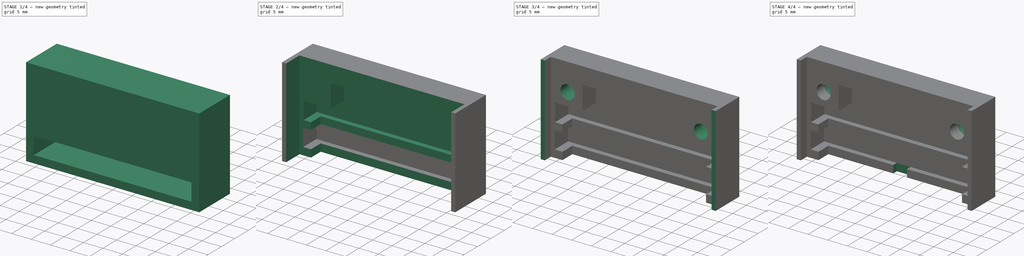
[diagram: build sequence overview — one tinted view per stage of 4, left to right]
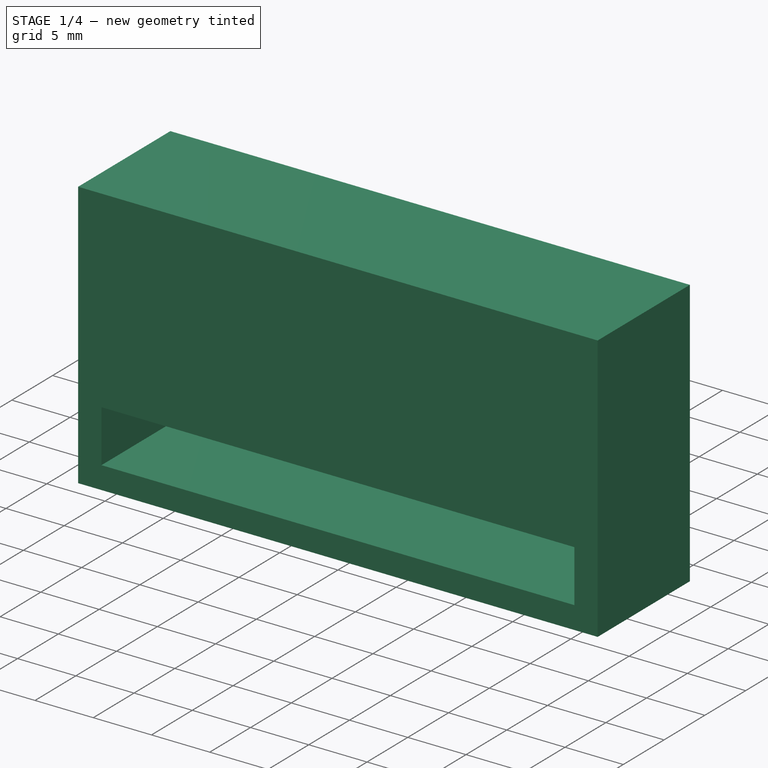
[diagram: stage 1 of 4 — iso view after this stage's code; geometry added in this stage tinted green]
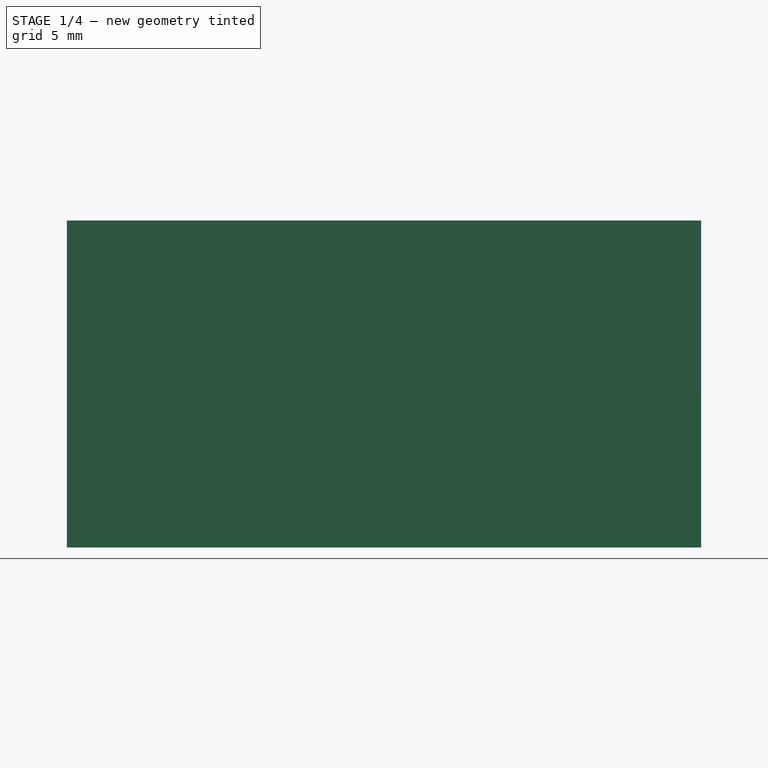
[diagram: stage 1 of 4 — front view after this stage's code; geometry added in this stage tinted green]
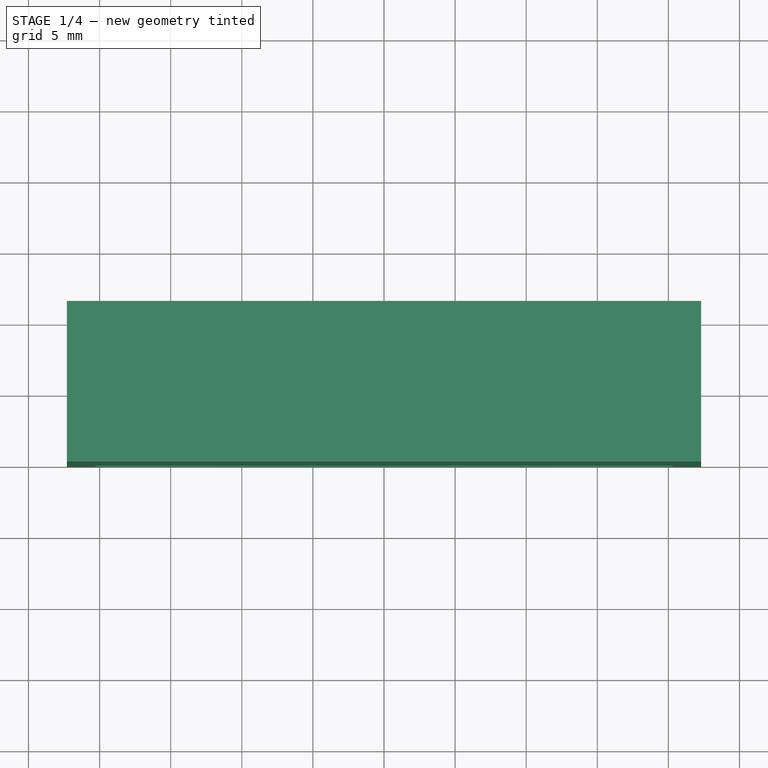
[diagram: stage 1 of 4 — top view after this stage's code; geometry added in this stage tinted green]
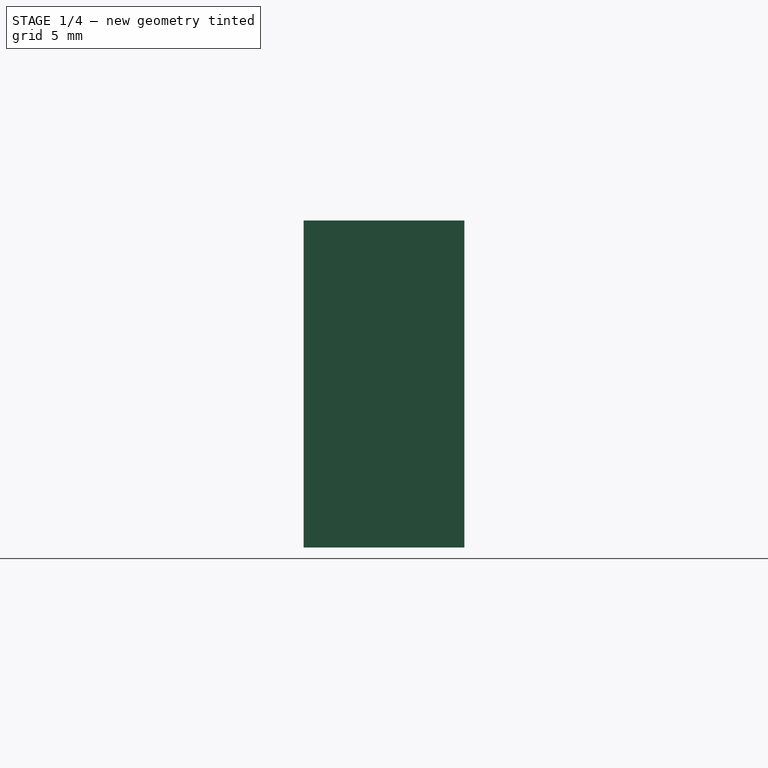
[diagram: stage 1 of 4 — right view after this stage's code; geometry added in this stage tinted green]
FCSTD DOCUMENT  (FreeCAD 0.20R29603 (Git))
Label: dpf_mon_box_gornji_sarka
License: All rights reserved
LicenseURL: http://en.wikipedia.org/wiki/All_rights_reserved
objects: Sketcher::SketchObject×10, PartDesign::Pocket×8, PartDesign::Pad×2, PartDesign::Body×1
note: 31 computed .brp shape members not serialized (recipe doc carries the construction recipe); baked Part::Feature solids carry a one-line shape summary decoded from their .brp

FEATURE [Sketcher::SketchObject] Sketch
  FullyConstrained = true
  MapMode = 5
  Support = -> [XY_Plane]
  sketch-geometry (4):
    g0: LineSegment StartX=22.3 StartY=11.3 StartZ=0 EndX=22.3 EndY=0 EndZ=0
    g1: LineSegment StartX=22.3 StartY=0 StartZ=0 EndX=-22.3 EndY=0 EndZ=0
    g2: LineSegment StartX=-22.3 StartY=0 StartZ=0 EndX=-22.3 EndY=11.3 EndZ=0
    g3: LineSegment StartX=-22.3 StartY=11.3 StartZ=0 EndX=22.3 EndY=11.3 EndZ=0
  constraints (11):
    c: Vertical(g0)
    c: Coincident(g0,g1)
    c: Coincident(g1,g2)
    c: Vertical(g2)
    c: DistanceX(g1,g1) = 44.6
    c: PointOnObject(g-1,g1)
    c: Equal(g0,g2)
    c: DistanceY(g0,g0) = 11.3
    c: Coincident(g3,g2)
    c: Coincident(g3,g0)
    c: Symmetric(g1,g0,g-2)
FEATURE [PartDesign::Pad] Pad
  Direction = (0,0,1)
  Length = 23
  Length2 = 10
  Profile = -> Sketch
  ReferenceAxis = -> Sketch [N_Axis]
  Type = 0
FEATURE [Sketcher::SketchObject] Sketch001
  FullyConstrained = true
  MapMode = 5
  Placement = pos=(0,0,0) rot=(1,0,0;1.5708rad)
  Support = -> [Pad]
  sketch-geometry (4):
    g0: LineSegment StartX=-20.3 StartY=6.43 StartZ=0 EndX=20.3 EndY=6.43 EndZ=0
    g1: LineSegment StartX=20.3 StartY=6.43 StartZ=0 EndX=20.3 EndY=1.93 EndZ=0
    g2: LineSegment StartX=20.3 StartY=1.93 StartZ=0 EndX=-20.3 EndY=1.93 EndZ=0
    g3: LineSegment StartX=-20.3 StartY=1.93 StartZ=0 EndX=-20.3 EndY=6.43 EndZ=0
  constraints (11):
    c: Coincident(g0,g1)
    c: Coincident(g1,g2)
    c: Coincident(g2,g3)
    c: Coincident(g3,g0)
    c: Horizontal(g0)
    c: Vertical(g1)
    c: Vertical(g3)
    c: DistanceY(g-1,g1) = 1.93
    c: DistanceY(g1,g1) = 4.5
    c: Symmetric(g2,g1,g-2)
    c: DistanceX(g2,g2) = 40.6
FEATURE [PartDesign::Pocket] Pocket
  BaseFeature = -> Pad
  Direction = (0,1,-2e-16)
  Length = 9.8
  Length2 = 5
  Profile = -> Sketch001
  ReferenceAxis = -> Sketch001 [N_Axis]
  Type = 0
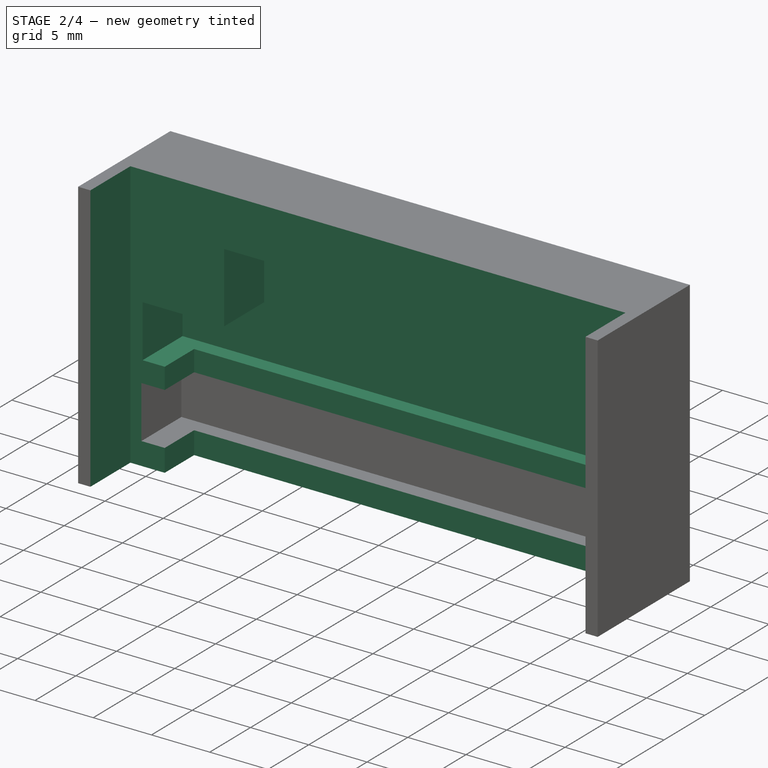
[diagram: stage 2 of 4 — iso view after this stage's code; geometry added in this stage tinted green]
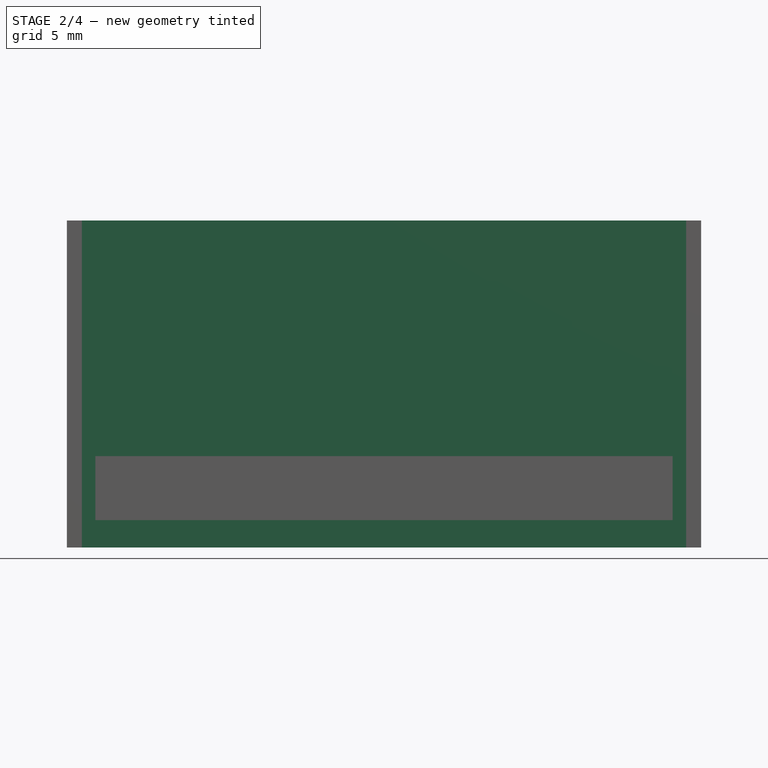
[diagram: stage 2 of 4 — front view after this stage's code; geometry added in this stage tinted green]
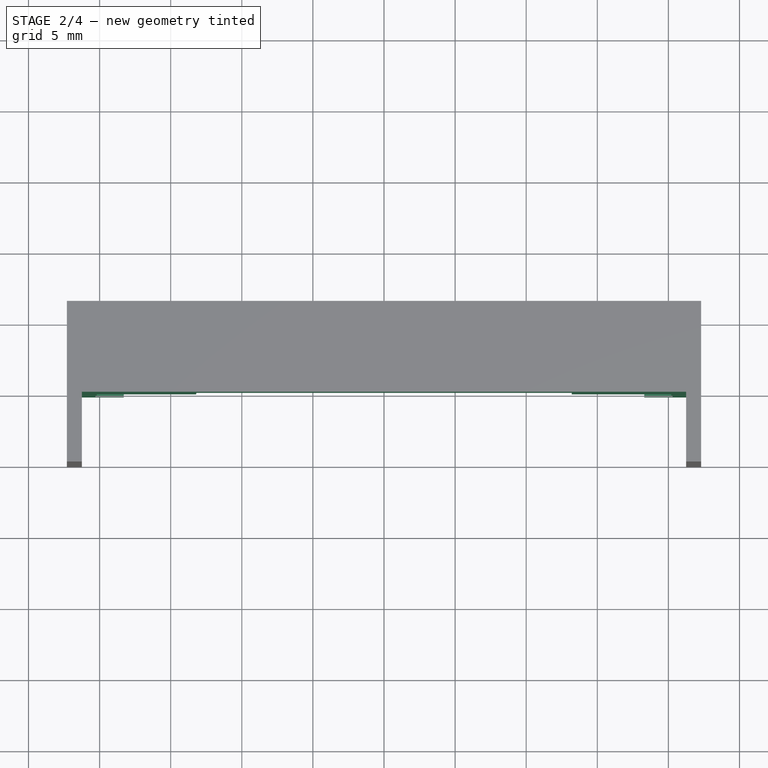
[diagram: stage 2 of 4 — top view after this stage's code; geometry added in this stage tinted green]
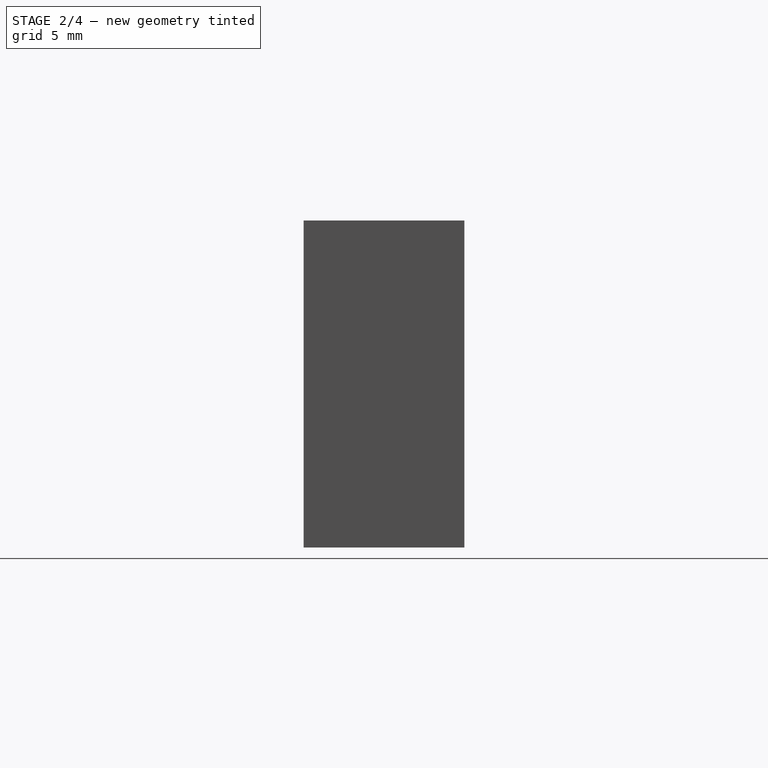
[diagram: stage 2 of 4 — right view after this stage's code; geometry added in this stage tinted green]
FEATURE [Sketcher::SketchObject] Sketch002
  FullyConstrained = true
  MapMode = 5
  Placement = pos=(0,0,0) rot=(1,0,0;3.14159rad)
  Support = -> [Pocket]
  sketch-geometry (4):
    g0: LineSegment StartX=-18.3 StartY=2.22 StartZ=0 EndX=18.3 EndY=2.22 EndZ=0
    g1: LineSegment StartX=18.3 StartY=2.22 StartZ=0 EndX=18.3 EndY=-8.5 EndZ=0
    g2: LineSegment StartX=18.3 StartY=-8.5 StartZ=0 EndX=-18.3 EndY=-8.5 EndZ=0
    g3: LineSegment StartX=-18.3 StartY=-8.5 StartZ=0 EndX=-18.3 EndY=2.22 EndZ=0
  constraints (11):
    c: Coincident(g0,g1)
    c: Coincident(g1,g2)
    c: Coincident(g2,g3)
    c: Coincident(g3,g0)
    c: Horizontal(g0)
    c: Vertical(g1)
    c: Vertical(g3)
    c: Symmetric(g2,g1,g-2)
    c: DistanceY(g1,g-1) = 8.5
    c: DistanceX(g2,g2) = 36.6
    c: DistanceY(g3,g3) = 10.72
FEATURE [PartDesign::Pocket] Pocket001
  BaseFeature = -> Pocket
  Direction = (0,0,1)
  Length = 9
  Length2 = 5
  Profile = -> Sketch002
  ReferenceAxis = -> Sketch002 [N_Axis]
  Type = 0
FEATURE [Sketcher::SketchObject] Sketch003
  FullyConstrained = true
  MapMode = 5
  Placement = pos=(0,0,0) rot=(1,0,0;1.5708rad)
  Support = -> [Pocket001]
  sketch-geometry (12):
    g0: LineSegment StartX=-13.2 StartY=18.73 StartZ=0 EndX=13.2 EndY=18.73 EndZ=0
    g1: LineSegment StartX=20.2 StartY=12.73 StartZ=0 EndX=20.2 EndY=8.23 EndZ=0
    g2: LineSegment StartX=20.2 StartY=8.23 StartZ=0 EndX=-20.2 EndY=8.23 EndZ=0
    g3: LineSegment StartX=-20.2 StartY=8.23 StartZ=0 EndX=-20.2 EndY=12.73 EndZ=0
    g4: LineSegment StartX=-20.2 StartY=12.73 StartZ=0 EndX=-13.2 EndY=12.73 EndZ=0
    g5: LineSegment StartX=-13.2 StartY=12.73 StartZ=0 EndX=-13.2 EndY=18.73 EndZ=0
    g6: LineSegment StartX=20.2 StartY=12.73 StartZ=0 EndX=13.2 EndY=12.73 EndZ=0
    g7: LineSegment StartX=13.2 StartY=12.73 StartZ=0 EndX=13.2 EndY=18.73 EndZ=0
    g8: LineSegment StartX=-13.2 StartY=18.73 StartZ=0 EndX=-20.2 EndY=18.73 EndZ=0
    g9: LineSegment StartX=13.2 StartY=18.73 StartZ=0 EndX=20.2 EndY=18.73 EndZ=0
    g10: LineSegment StartX=-20.2 StartY=18.73 StartZ=0 EndX=-20.2 EndY=12.73 EndZ=0
    g11: LineSegment StartX=20.2 StartY=12.73 StartZ=0 EndX=20.2 EndY=18.73 EndZ=0
  constraints (34):
    c: Coincident(g1,g2)
    c: Coincident(g2,g3)
    c: Horizontal(g0)
    c: Vertical(g1)
    c: Vertical(g3)
    c: Symmetric(g2,g1,g-2)
    c: DistanceX(g2,g2) = 40.4
    c: DistanceY(g-1,g2) = 8.23
    c: DistanceY(g3,g8) = 10.5
    c: Horizontal(g4)
    c: Coincident(g4,g5)
    c: Vertical(g5)
    c: Horizontal(g6)
    c: Coincident(g6,g7)
    c: Vertical(g7)
    c: Equal(g6,g4)
    c: DistanceX(g4,g4) = 7
    c: DistanceY(g5,g5) = 6
    c: Equal(g7,g5)
    c: Coincident(g0,g5)
    c: Coincident(g0,g7)
    c: Coincident(g8,g0)
    c: Horizontal(g8)
    c: Coincident(g9,g0)
    c: Horizontal(g9)
    c: Coincident(g3,g4)
    c: Coincident(g1,g6)
    c: Coincident(g10,g8)
    c: Coincident(g10,g3)
    c: Vertical(g10)
    c: Coincident(g11,g1)
    c: Coincident(g11,g9)
    c: Vertical(g11)
    c: DistanceY(g3,g3) = 4.5
FEATURE [PartDesign::Pocket] Pocket002
  BaseFeature = -> Pocket001
  Direction = (0,1,-2e-16)
  Length = 9.8
  Length2 = 5
  Profile = -> Sketch003
  ReferenceAxis = -> Sketch003 [N_Axis]
  Type = 0
FEATURE [Sketcher::SketchObject] Sketch004
  FullyConstrained = true
  MapMode = 5
  Placement = pos=(0,0,0) rot=(1,0,0;1.5708rad)
  Support = -> [Pocket002]
  sketch-geometry (4):
    g0: LineSegment StartX=-21.25 StartY=25.59 StartZ=0 EndX=21.25 EndY=25.59 EndZ=0
    g1: LineSegment StartX=21.25 StartY=25.59 StartZ=0 EndX=21.25 EndY=-4 EndZ=0
    g2: LineSegment StartX=21.25 StartY=-4 StartZ=0 EndX=-21.25 EndY=-4 EndZ=0
    g3: LineSegment StartX=-21.25 StartY=-4 StartZ=0 EndX=-21.25 EndY=25.59 EndZ=0
  constraints (11):
    c: Coincident(g0,g1)
    c: Coincident(g1,g2)
    c: Coincident(g2,g3)
    c: Coincident(g3,g0)
    c: Horizontal(g0)
    c: Vertical(g1)
    c: Vertical(g3)
    c: Symmetric(g2,g1,g-2)
    c: DistanceX(g2,g2) = 42.5
    c: DistanceY(g3,g3) = 29.59
    c: DistanceY(g2,g-1) = 4
FEATURE [PartDesign::Pocket] Pocket003
  BaseFeature = -> Pocket002
  Direction = (0,1,-2e-16)
  Length = 4.9
  Length2 = 5
  Profile = -> Sketch004
  ReferenceAxis = -> Sketch004 [N_Axis]
  Type = 0
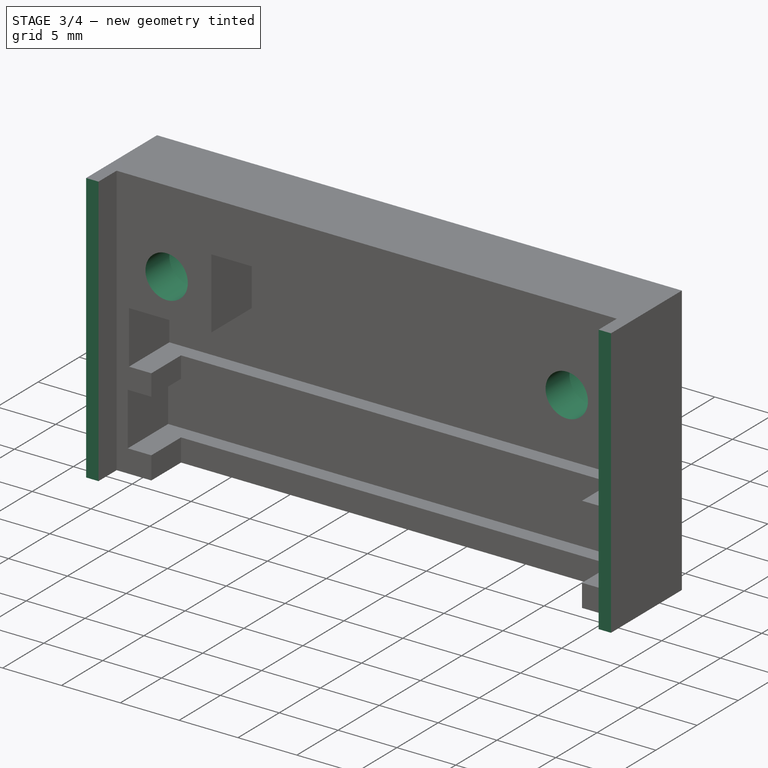
[diagram: stage 3 of 4 — iso view after this stage's code; geometry added in this stage tinted green]
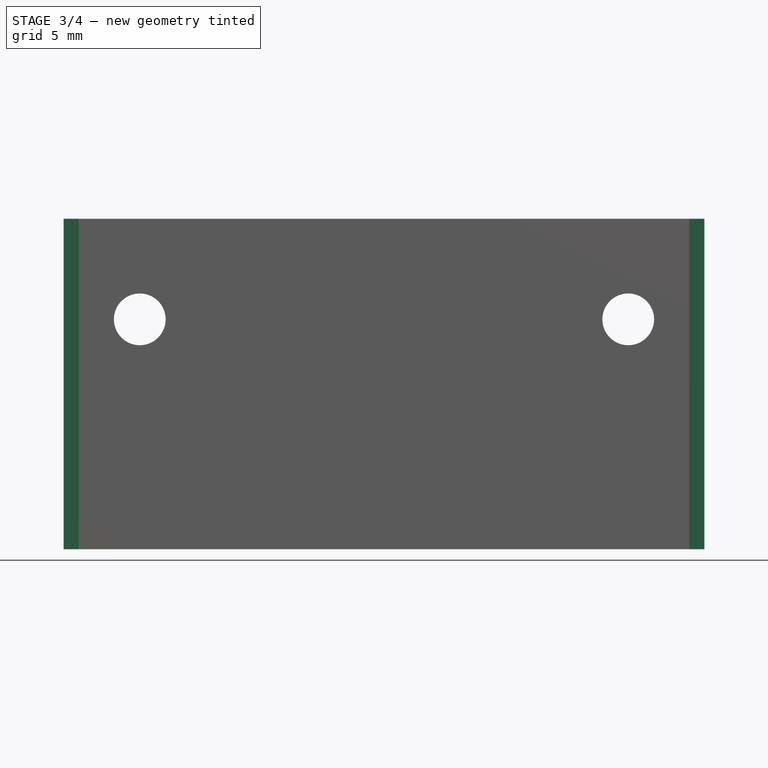
[diagram: stage 3 of 4 — front view after this stage's code; geometry added in this stage tinted green]
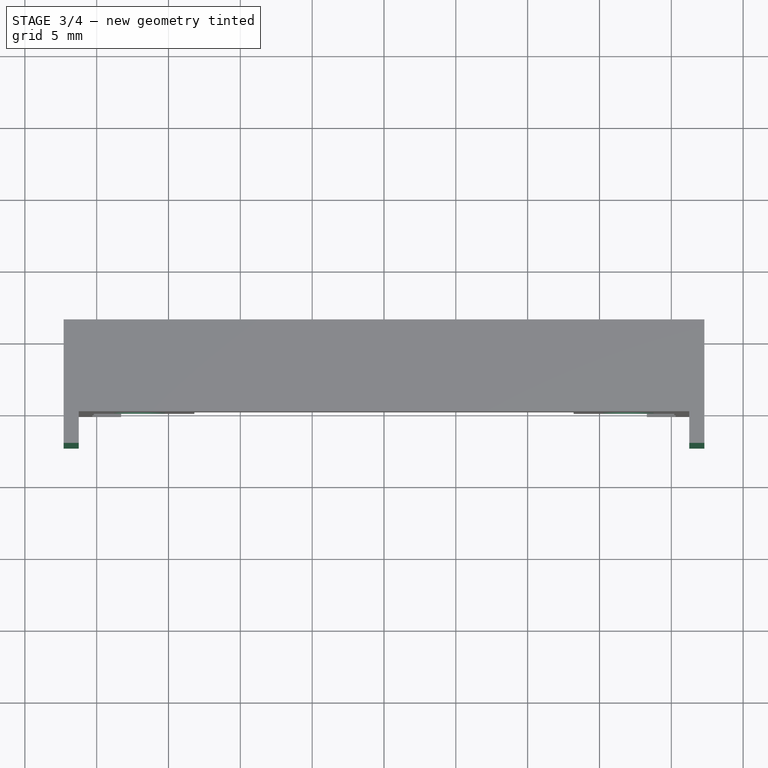
[diagram: stage 3 of 4 — top view after this stage's code; geometry added in this stage tinted green]
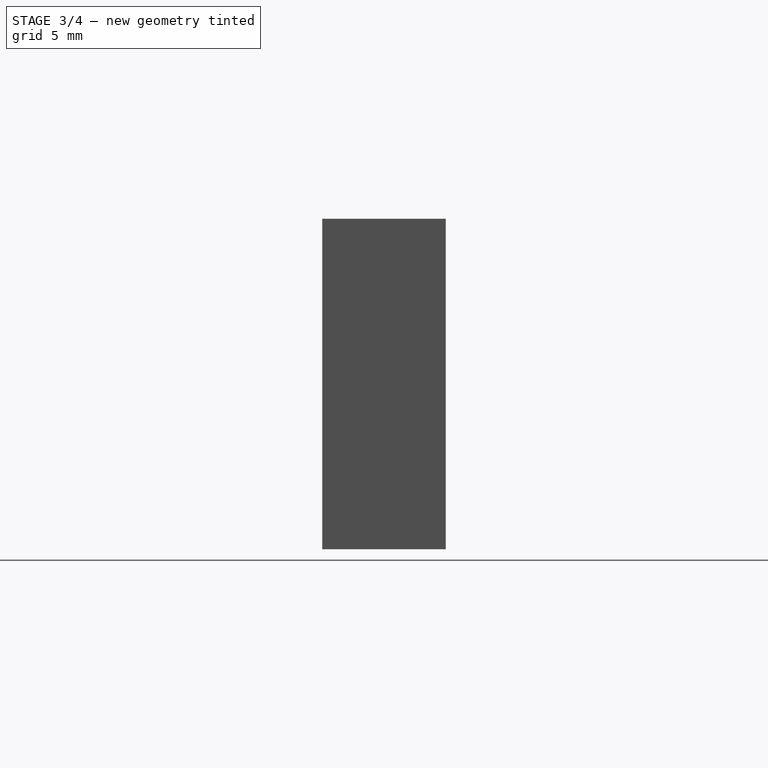
[diagram: stage 3 of 4 — right view after this stage's code; geometry added in this stage tinted green]
FEATURE [Sketcher::SketchObject] Sketch005
  FullyConstrained = true
  MapMode = 5
  Placement = pos=(0,0,0) rot=(1,0,0;1.5708rad)
  Support = -> [Pocket003]
  sketch-geometry (2):
    g0: Circle CenterX=-17 CenterY=16 CenterZ=0 NormalX=0 NormalY=0 NormalZ=1 AngleXU=0 Radius=1.8
    g1: Circle CenterX=17 CenterY=16 CenterZ=0 NormalX=0 NormalY=0 NormalZ=1 AngleXU=0 Radius=1.8
  constraints (5):
    c: Equal(g1,g0)
    c: Symmetric(g1,g0,g-2)
    c: DistanceX(g0,g-1) = 17
    c: Diameter(g0) = 3.6
    c: DistanceY(g-1,g0) = 16
FEATURE [PartDesign::Pocket] Pocket004
  BaseFeature = -> Pocket003
  Direction = (0,1,-2e-16)
  Length = 5
  Length2 = 5
  Profile = -> Sketch005
  ReferenceAxis = -> Sketch005 [N_Axis]
  Type = 1
FEATURE [Sketcher::SketchObject] Sketch006
  FullyConstrained = true
  MapMode = 5
  Placement = pos=(0,11.3,0) rot=(0,0.707107,0.707107;3.14159rad)
  Support = -> [Pocket004]
  sketch-geometry (2):
    g0: Circle CenterX=-17 CenterY=16 CenterZ=0 NormalX=0 NormalY=0 NormalZ=1 AngleXU=0 Radius=3
    g1: Circle CenterX=17 CenterY=16 CenterZ=0 NormalX=0 NormalY=0 NormalZ=1 AngleXU=0 Radius=3
  constraints (5):
    c: Symmetric(g1,g0,g-2)
    c: DistanceX(g0,g-1) = 17
    c: DistanceY(g-1,g0) = 16
    c: Equal(g0,g1)
    c: Diameter(g0) = 6
FEATURE [PartDesign::Pocket] Pocket005
  BaseFeature = -> Pocket004
  Direction = (0,-1,2e-16)
  Length = 3.5
  Length2 = 5
  Profile = -> Sketch006
  ReferenceAxis = -> Sketch006 [N_Axis]
  Type = 0
FEATURE [Sketcher::SketchObject] Sketch007
  FullyConstrained = false
  MapMode = 5
  Placement = pos=(-22.3,0,0) rot=(0.57735,-0.57735,-0.57735;2.0944rad)
  Support = -> [Pocket005]
  sketch-geometry (4):
    g0: LineSegment StartX=15.12 StartY=33.4624 StartZ=0 EndX=-2.7 EndY=33.4624 EndZ=0
    g1: LineSegment StartX=-2.7 StartY=33.4624 StartZ=0 EndX=-2.7 EndY=-8.25765 EndZ=0
    g2: LineSegment StartX=-2.7 StartY=-8.25765 StartZ=0 EndX=15.12 EndY=-8.25765 EndZ=0
    g3: LineSegment StartX=15.12 StartY=-8.25765 StartZ=0 EndX=15.12 EndY=33.4624 EndZ=0
  constraints (10):
    c: Coincident(g0,g1)
    c: Coincident(g1,g2)
    c: Coincident(g2,g3)
    c: Coincident(g3,g0)
    c: Horizontal(g0)
    c: Horizontal(g2)
    c: Vertical(g1)
    c: Vertical(g3)
    c: DistanceX(g1,g-1) = 2.7
    c: DistanceX(g2,g2) = 17.82
FEATURE [PartDesign::Pocket] Pocket006
  BaseFeature = -> Pocket005
  Direction = (1,0,0)
  Length = 5
  Length2 = 5
  Profile = -> Sketch007
  ReferenceAxis = -> Sketch007 [N_Axis]
  Type = 1
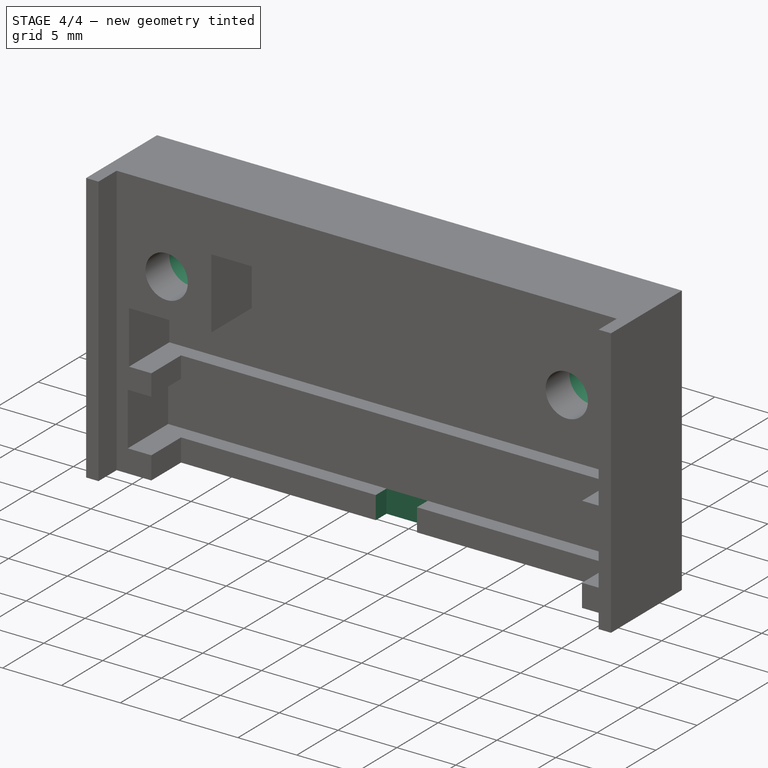
[diagram: stage 4 of 4 — iso view after this stage's code; geometry added in this stage tinted green]
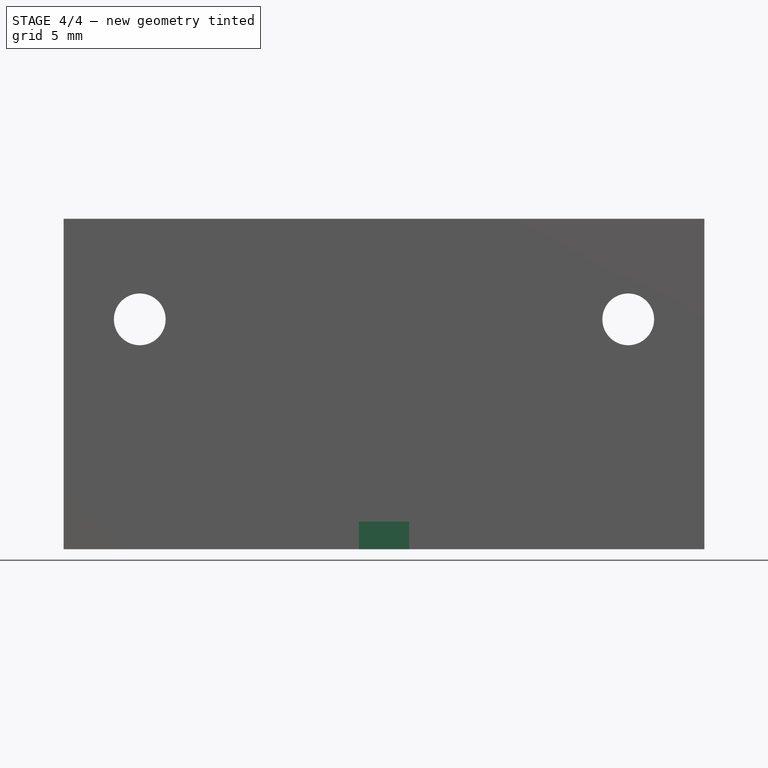
[diagram: stage 4 of 4 — front view after this stage's code; geometry added in this stage tinted green]
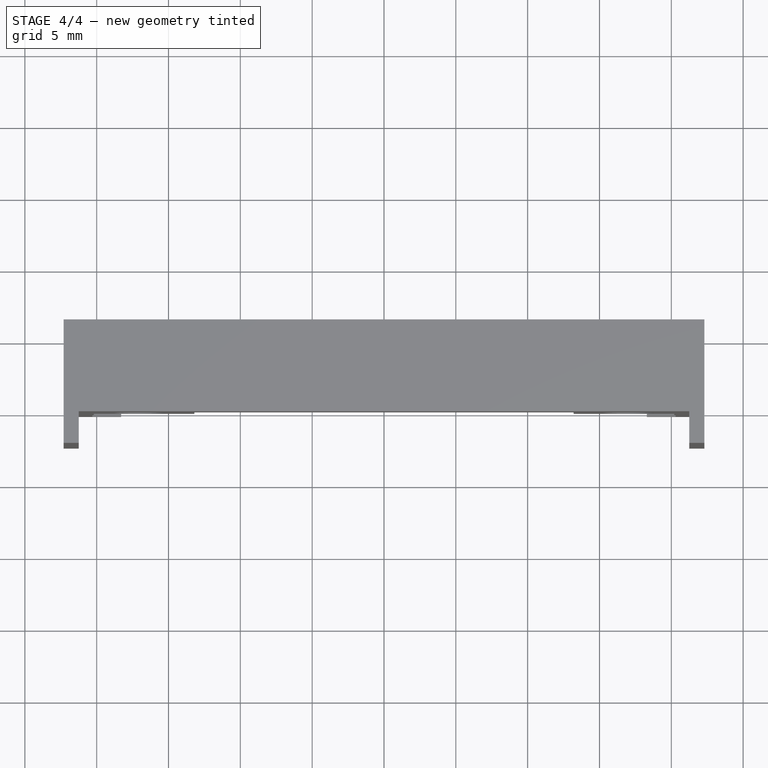
[diagram: stage 4 of 4 — top view after this stage's code; geometry added in this stage tinted green]
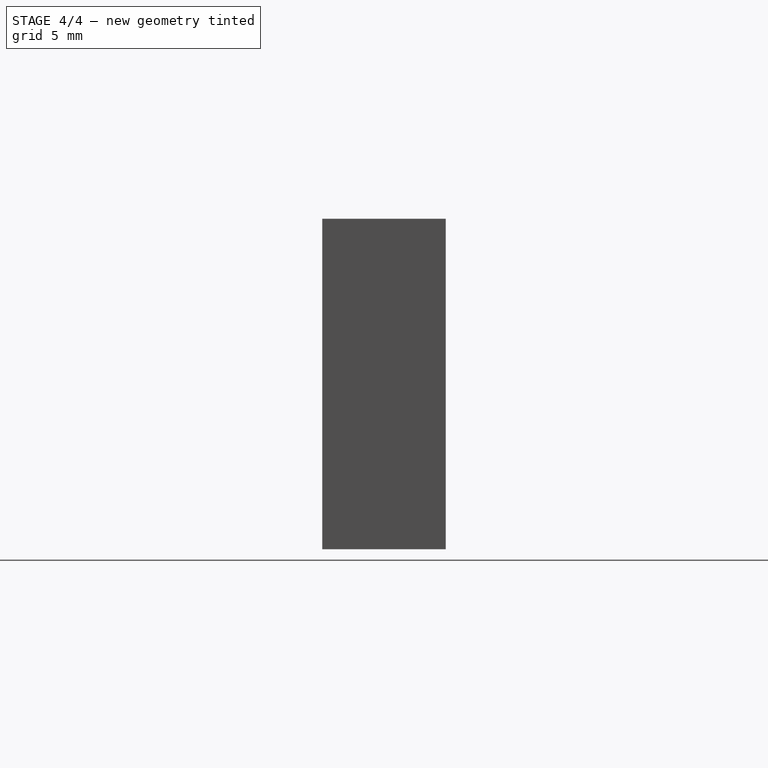
[diagram: stage 4 of 4 — right view after this stage's code; geometry added in this stage tinted green]
FEATURE [Sketcher::SketchObject] Sketch008
  FullyConstrained = true
  MapMode = 5
  Placement = pos=(0,7.8,0) rot=(0,0.707107,0.707107;3.14159rad)
  Support = -> [Pocket006]
  sketch-geometry (4):
    g0: Circle CenterX=-17 CenterY=16 CenterZ=0 NormalX=0 NormalY=0 NormalZ=1 AngleXU=0 Radius=1.8
    g1: Circle CenterX=-17 CenterY=16 CenterZ=0 NormalX=0 NormalY=0 NormalZ=1 AngleXU=0 Radius=2.2
    g2: Circle CenterX=17 CenterY=16 CenterZ=0 NormalX=0 NormalY=0 NormalZ=1 AngleXU=0 Radius=2.2
    g3: Circle CenterX=17 CenterY=16 CenterZ=0 NormalX=0 NormalY=0 NormalZ=1 AngleXU=0 Radius=1.8
  constraints (9):
    c: Coincident(g1,g0)
    c: Coincident(g3,g2)
    c: Symmetric(g0,g2,g-2)
    c: DistanceY(g-1,g0) = 16
    c: DistanceX(g0,g-1) = 17
    c: Equal(g1,g2)
    c: Equal(g3,g0)
    c: Diameter(g0) = 3.6
    c: Diameter(g1) = 4.4
FEATURE [PartDesign::Pad] Pad001
  BaseFeature = -> Pocket006
  Direction = (0,1,-2e-16)
  Length = 3.5
  Length2 = 10
  Profile = -> Sketch008
  ReferenceAxis = -> Sketch008 [N_Axis]
  Type = 0
FEATURE [Sketcher::SketchObject] Sketch009
  FullyConstrained = false
  MapMode = 5
  Placement = pos=(0,8.5,0) rot=(1,0,0;1.5708rad)
  Support = -> [Pad001]
  sketch-geometry (4):
    g0: LineSegment StartX=-1.75 StartY=3.78628 StartZ=0 EndX=1.75 EndY=3.78628 EndZ=0
    g1: LineSegment StartX=1.75 StartY=3.78628 StartZ=0 EndX=1.75 EndY=-5.51656 EndZ=0
    g2: LineSegment StartX=1.75 StartY=-5.51656 StartZ=0 EndX=-1.75 EndY=-5.51656 EndZ=0
    g3: LineSegment StartX=-1.75 StartY=-5.51656 StartZ=0 EndX=-1.75 EndY=3.78628 EndZ=0
  constraints (9):
    c: Coincident(g0,g1)
    c: Coincident(g1,g2)
    c: Coincident(g2,g3)
    c: Coincident(g3,g0)
    c: Horizontal(g0)
    c: Vertical(g1)
    c: Vertical(g3)
    c: Symmetric(g2,g1,g-2)
    c: DistanceX(g2,g2) = 3.5
FEATURE [PartDesign::Pocket] Pocket007
  BaseFeature = -> Pad001
  Direction = (0,1,-2e-16)
  Length = 1.3
  Length2 = 5
  Offset = 2
  Profile = -> Sketch009
  ReferenceAxis = -> Sketch009 [N_Axis]
  Type = 0
FEATURE [PartDesign::Body] Body
  Group = -> [Sketch,Pad,Sketch001,Pocket,Sketch002,Pocket001,Sketch003,Pocket002,Sketch004,Pocket003,Sketch005,Pocket004,Sketch006,Pocket005,Sketch007,Pocket006,Sketch008,Pad001,Sketch009,Pocket007]
  Origin = -> Origin
  Tip = -> Pocket007
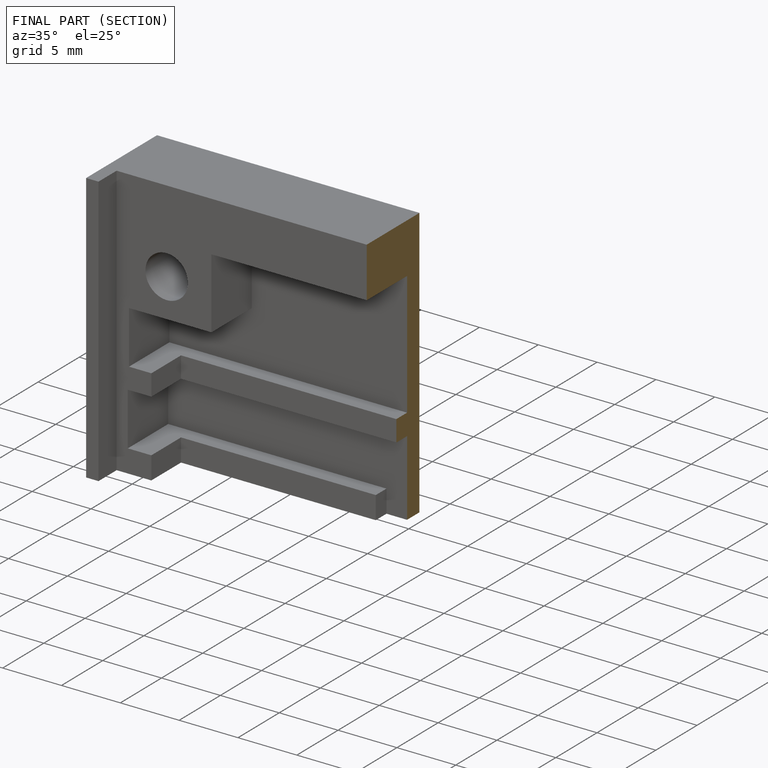
[diagram: finished part — half-section view (interior)]
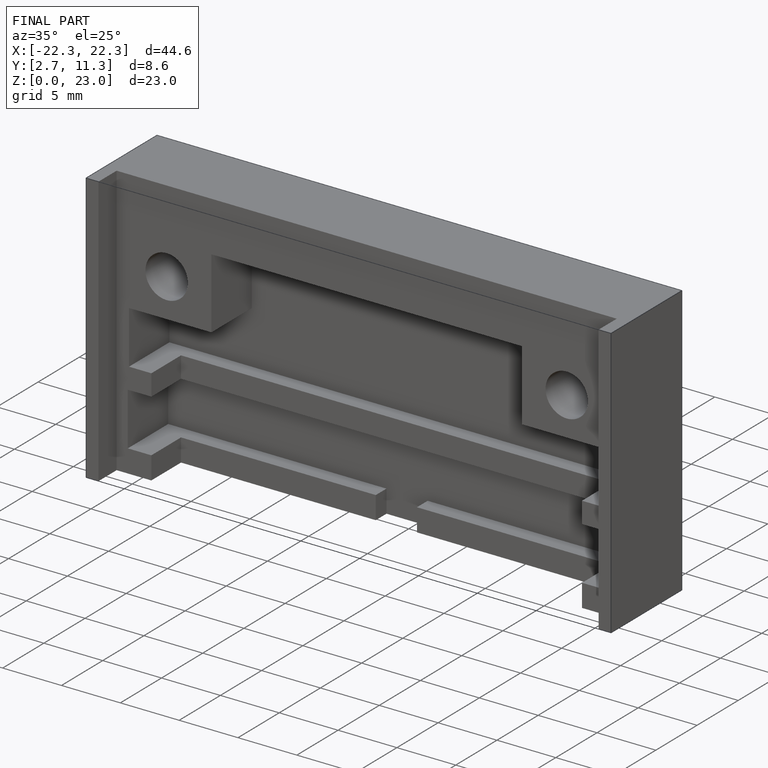
[diagram: finished part — iso view with bounding-box wireframe]
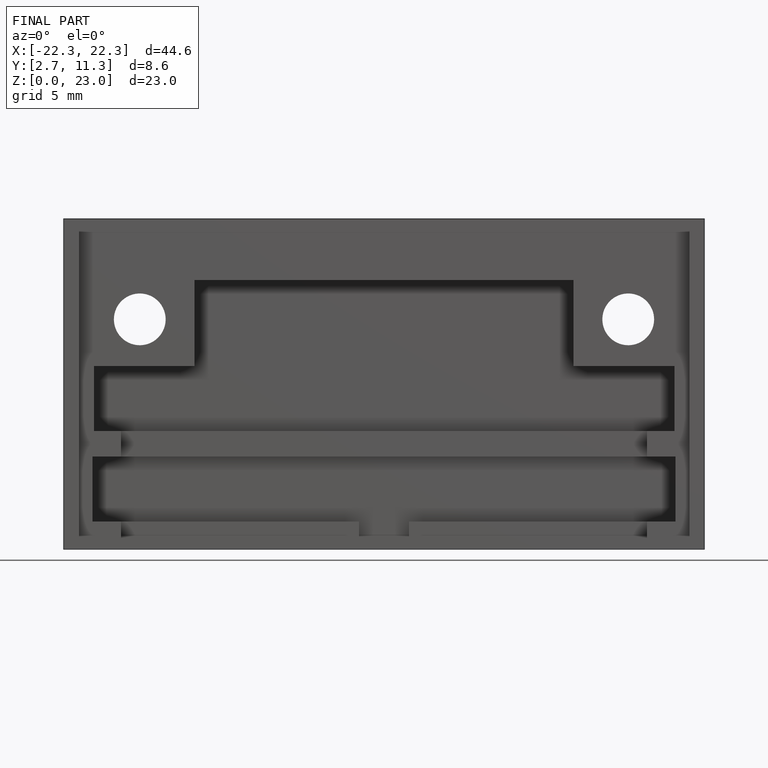
[diagram: finished part — front view with bounding-box wireframe]
